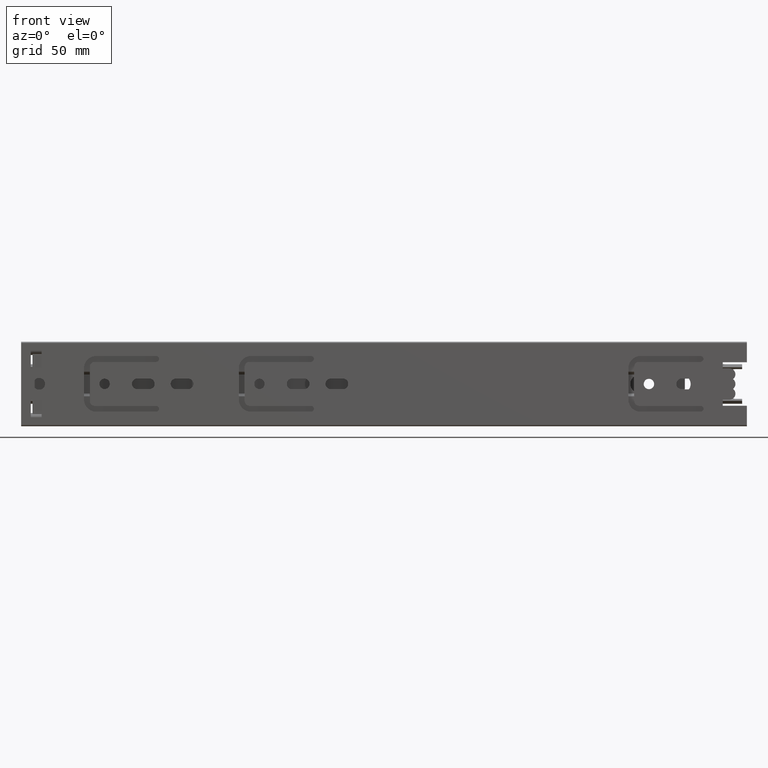
[diagram: clean part render]
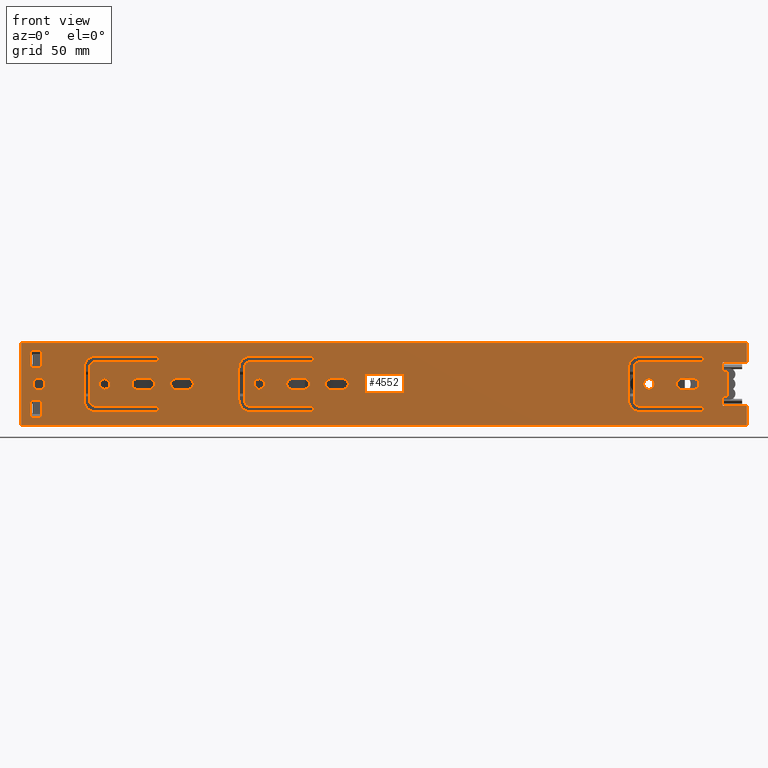
[diagram: same view with one face highlighted and labeled with its STEP entity id]
A machine part, front view. The second image highlights one B-rep face of the part: STEP entity #4552.
In plain terms, the highlighted planar face has unit normal (0, -1, 0).
Its self-contained STEP definition (entity closure, byte-faithful):
#159=FACE_BOUND('',#483,.T.);
#160=FACE_BOUND('',#484,.T.);
#161=FACE_BOUND('',#485,.T.);
#162=FACE_BOUND('',#486,.T.);
#163=FACE_BOUND('',#487,.T.);
#164=FACE_BOUND('',#488,.T.);
#165=FACE_BOUND('',#489,.T.);
#166=FACE_BOUND('',#490,.T.);
#167=FACE_BOUND('',#491,.T.);
#168=FACE_BOUND('',#492,.T.);
#169=FACE_BOUND('',#493,.T.);
#170=FACE_BOUND('',#494,.T.);
#171=FACE_BOUND('',#495,.T.);
#172=FACE_BOUND('',#496,.T.);
#227=FACE_OUTER_BOUND('',#482,.T.);
#482=EDGE_LOOP('',(#3208,#3209,#3210,#3211,#3212,#3213,#3214,#3215,#3216,
#3217,#3218,#3219));
#483=EDGE_LOOP('',(#3220,#3221,#3222,#3223));
#484=EDGE_LOOP('',(#3224,#3225,#3226,#3227));
#485=EDGE_LOOP('',(#3228,#3229,#3230,#3231));
#486=EDGE_LOOP('',(#3232,#3233,#3234,#3235));
#487=EDGE_LOOP('',(#3236));
#488=EDGE_LOOP('',(#3237));
#489=EDGE_LOOP('',(#3238));
#490=EDGE_LOOP('',(#3239));
#491=EDGE_LOOP('',(#3240,#3241,#3242,#3243));
#492=EDGE_LOOP('',(#3244,#3245,#3246,#3247));
#493=EDGE_LOOP('',(#3248,#3249,#3250,#3251));
#494=EDGE_LOOP('',(#3252,#3253,#3254,#3255,#3256,#3257,#3258,#3259,#3260,
#3261,#3262,#3263));
#495=EDGE_LOOP('',(#3264,#3265,#3266,#3267,#3268,#3269,#3270,#3271,#3272,
#3273,#3274,#3275));
#496=EDGE_LOOP('',(#3276,#3277,#3278,#3279,#3280,#3281,#3282,#3283,#3284,
#3285,#3286,#3287));
#769=LINE('',#6630,#1259);
#774=LINE('',#6639,#1264);
#823=LINE('',#6803,#1313);
#826=LINE('',#6808,#1316);
#828=LINE('',#6812,#1318);
#829=LINE('',#6815,#1319);
#832=LINE('',#6820,#1322);
#833=LINE('',#6823,#1323);
#834=LINE('',#6825,#1324);
#835=LINE('',#6827,#1325);
#836=LINE('',#6829,#1326);
#837=LINE('',#6830,#1327);
#838=LINE('',#6835,#1328);
#839=LINE('',#6838,#1329);
#840=LINE('',#6843,#1330);
#841=LINE('',#6846,#1331);
#842=LINE('',#6851,#1332);
#843=LINE('',#6854,#1333);
#844=LINE('',#6857,#1334);
#845=LINE('',#6859,#1335);
#846=LINE('',#6861,#1336);
#847=LINE('',#6862,#1337);
#848=LINE('',#6873,#1338);
#849=LINE('',#6875,#1339);
#850=LINE('',#6877,#1340);
#851=LINE('',#6878,#1341);
#852=LINE('',#6883,#1342);
#853=LINE('',#6886,#1343);
#854=LINE('',#6891,#1344);
#855=LINE('',#6894,#1345);
#856=LINE('',#6899,#1346);
#857=LINE('',#6903,#1347);
#858=LINE('',#6907,#1348);
#859=LINE('',#6911,#1349);
#860=LINE('',#6915,#1350);
#861=LINE('',#6918,#1351);
#862=LINE('',#6923,#1352);
#863=LINE('',#6927,#1353);
#864=LINE('',#6931,#1354);
#865=LINE('',#6935,#1355);
#866=LINE('',#6939,#1356);
#867=LINE('',#6942,#1357);
#868=LINE('',#6947,#1358);
#869=LINE('',#6951,#1359);
#870=LINE('',#6955,#1360);
#871=LINE('',#6959,#1361);
#872=LINE('',#6963,#1362);
#873=LINE('',#6966,#1363);
#1259=VECTOR('',#5275,10.);
#1264=VECTOR('',#5282,2.00000000000003);
#1313=VECTOR('',#5403,2.00000000000003);
#1316=VECTOR('',#5408,4.00000000000002);
#1318=VECTOR('',#5412,10.);
#1319=VECTOR('',#5415,3.99999999999997);
#1322=VECTOR('',#5420,10.);
#1323=VECTOR('',#5423,8.);
#1324=VECTOR('',#5424,300.);
#1325=VECTOR('',#5425,34.);
#1326=VECTOR('',#5426,300.);
#1327=VECTOR('',#5427,8.);
#1328=VECTOR('',#5430,5.);
#1329=VECTOR('',#5433,5.);
#1330=VECTOR('',#5436,5.);
#1331=VECTOR('',#5439,5.);
#1332=VECTOR('',#5442,5.);
#1333=VECTOR('',#5445,5.);
#1334=VECTOR('',#5446,7.);
#1335=VECTOR('',#5447,4.49999999999999);
#1336=VECTOR('',#5448,7.);
#1337=VECTOR('',#5449,4.49999999999999);
#1338=VECTOR('',#5458,7.);
#1339=VECTOR('',#5459,4.49999999999999);
#1340=VECTOR('',#5460,7.);
#1341=VECTOR('',#5461,4.49999999999999);
#1342=VECTOR('',#5464,5.);
#1343=VECTOR('',#5467,5.);
#1344=VECTOR('',#5470,5.);
#1345=VECTOR('',#5473,5.);
#1346=VECTOR('',#5476,25.4);
#1347=VECTOR('',#5479,14.2);
#1348=VECTOR('',#5482,25.4);
#1349=VECTOR('',#5485,24.8);
#1350=VECTOR('',#5488,13.);
#1351=VECTOR('',#5491,24.8);
#1352=VECTOR('',#5494,24.7999999999999);
#1353=VECTOR('',#5497,13.);
#1354=VECTOR('',#5500,24.7999999999999);
#1355=VECTOR('',#5503,25.3999999999999);
#1356=VECTOR('',#5506,14.2);
#1357=VECTOR('',#5509,25.3999999999999);
#1358=VECTOR('',#5512,25.4);
#1359=VECTOR('',#5515,14.2);
#1360=VECTOR('',#5518,25.4);
#1361=VECTOR('',#5521,24.8);
#1362=VECTOR('',#5524,13.);
#1363=VECTOR('',#5527,24.8);
#1776=CIRCLE('',#4844,2.2);
#1777=CIRCLE('',#4845,2.2);
#1778=CIRCLE('',#4846,2.20000000000006);
#1779=CIRCLE('',#4847,2.20000000000006);
#1780=CIRCLE('',#4848,2.2);
#1781=CIRCLE('',#4849,2.2);
#1782=CIRCLE('',#4850,2.15);
#1783=CIRCLE('',#4851,2.15);
#1784=CIRCLE('',#4852,2.15);
#1785=CIRCLE('',#4853,2.45);
#1786=CIRCLE('',#4854,2.2);
#1787=CIRCLE('',#4855,2.2);
#1788=CIRCLE('',#4856,2.20000000000006);
#1789=CIRCLE('',#4857,2.20000000000006);
#1790=CIRCLE('',#4858,1.2);
#1791=CIRCLE('',#4859,1.99999999999999);
#1792=CIRCLE('',#4860,1.99999999999998);
#1793=CIRCLE('',#4861,1.2);
#1794=CIRCLE('',#4862,5.);
#1795=CIRCLE('',#4863,5.);
#1796=CIRCLE('',#4864,1.2);
#1797=CIRCLE('',#4865,5.);
#1798=CIRCLE('',#4866,5.);
#1799=CIRCLE('',#4867,1.2);
#1800=CIRCLE('',#4868,2.);
#1801=CIRCLE('',#4869,2.00000000000001);
#1802=CIRCLE('',#4870,1.2);
#1803=CIRCLE('',#4871,1.99999999999999);
#1804=CIRCLE('',#4872,1.99999999999999);
#1805=CIRCLE('',#4873,1.2);
#1806=CIRCLE('',#4874,5.00000000000002);
#1807=CIRCLE('',#4875,5.00000000000002);
#1934=VERTEX_POINT('',#6627);
#1935=VERTEX_POINT('',#6629);
#1938=VERTEX_POINT('',#6637);
#2017=VERTEX_POINT('',#6802);
#2018=VERTEX_POINT('',#6806);
#2019=VERTEX_POINT('',#6810);
#2020=VERTEX_POINT('',#6814);
#2021=VERTEX_POINT('',#6818);
#2022=VERTEX_POINT('',#6822);
#2023=VERTEX_POINT('',#6824);
#2024=VERTEX_POINT('',#6826);
#2025=VERTEX_POINT('',#6828);
#2026=VERTEX_POINT('',#6831);
#2027=VERTEX_POINT('',#6832);
#2028=VERTEX_POINT('',#6834);
#2029=VERTEX_POINT('',#6836);
#2030=VERTEX_POINT('',#6839);
#2031=VERTEX_POINT('',#6840);
#2032=VERTEX_POINT('',#6842);
#2033=VERTEX_POINT('',#6844);
#2034=VERTEX_POINT('',#6847);
#2035=VERTEX_POINT('',#6848);
#2036=VERTEX_POINT('',#6850);
#2037=VERTEX_POINT('',#6852);
#2038=VERTEX_POINT('',#6855);
#2039=VERTEX_POINT('',#6856);
#2040=VERTEX_POINT('',#6858);
#2041=VERTEX_POINT('',#6860);
#2042=VERTEX_POINT('',#6863);
#2043=VERTEX_POINT('',#6865);
#2044=VERTEX_POINT('',#6867);
#2045=VERTEX_POINT('',#6869);
#2046=VERTEX_POINT('',#6871);
#2047=VERTEX_POINT('',#6872);
#2048=VERTEX_POINT('',#6874);
#2049=VERTEX_POINT('',#6876);
#2050=VERTEX_POINT('',#6879);
#2051=VERTEX_POINT('',#6880);
#2052=VERTEX_POINT('',#6882);
#2053=VERTEX_POINT('',#6884);
#2054=VERTEX_POINT('',#6887);
#2055=VERTEX_POINT('',#6888);
#2056=VERTEX_POINT('',#6890);
#2057=VERTEX_POINT('',#6892);
#2058=VERTEX_POINT('',#6895);
#2059=VERTEX_POINT('',#6896);
#2060=VERTEX_POINT('',#6898);
#2061=VERTEX_POINT('',#6900);
#2062=VERTEX_POINT('',#6902);
#2063=VERTEX_POINT('',#6904);
#2064=VERTEX_POINT('',#6906);
#2065=VERTEX_POINT('',#6908);
#2066=VERTEX_POINT('',#6910);
#2067=VERTEX_POINT('',#6912);
#2068=VERTEX_POINT('',#6914);
#2069=VERTEX_POINT('',#6916);
#2070=VERTEX_POINT('',#6919);
#2071=VERTEX_POINT('',#6920);
#2072=VERTEX_POINT('',#6922);
#2073=VERTEX_POINT('',#6924);
#2074=VERTEX_POINT('',#6926);
#2075=VERTEX_POINT('',#6928);
#2076=VERTEX_POINT('',#6930);
#2077=VERTEX_POINT('',#6932);
#2078=VERTEX_POINT('',#6934);
#2079=VERTEX_POINT('',#6936);
#2080=VERTEX_POINT('',#6938);
#2081=VERTEX_POINT('',#6940);
#2082=VERTEX_POINT('',#6943);
#2083=VERTEX_POINT('',#6944);
#2084=VERTEX_POINT('',#6946);
#2085=VERTEX_POINT('',#6948);
#2086=VERTEX_POINT('',#6950);
#2087=VERTEX_POINT('',#6952);
#2088=VERTEX_POINT('',#6954);
#2089=VERTEX_POINT('',#6956);
#2090=VERTEX_POINT('',#6958);
#2091=VERTEX_POINT('',#6960);
#2092=VERTEX_POINT('',#6962);
#2093=VERTEX_POINT('',#6964);
#2397=EDGE_CURVE('',#1934,#1935,#769,.T.);
#2402=EDGE_CURVE('',#1938,#1934,#774,.T.);
#2483=EDGE_CURVE('',#1935,#2017,#823,.T.);
#2486=EDGE_CURVE('',#1938,#2018,#826,.T.);
#2488=EDGE_CURVE('',#2018,#2019,#828,.T.);
#2489=EDGE_CURVE('',#2020,#2017,#829,.T.);
#2492=EDGE_CURVE('',#2021,#2020,#832,.T.);
#2493=EDGE_CURVE('',#2022,#2019,#833,.T.);
#2494=EDGE_CURVE('',#2023,#2022,#834,.T.);
#2495=EDGE_CURVE('',#2024,#2023,#835,.T.);
#2496=EDGE_CURVE('',#2024,#2025,#836,.T.);
#2497=EDGE_CURVE('',#2021,#2025,#837,.T.);
#2498=EDGE_CURVE('',#2026,#2027,#1776,.T.);
#2499=EDGE_CURVE('',#2027,#2028,#838,.T.);
#2500=EDGE_CURVE('',#2028,#2029,#1777,.T.);
#2501=EDGE_CURVE('',#2029,#2026,#839,.T.);
#2502=EDGE_CURVE('',#2030,#2031,#1778,.T.);
#2503=EDGE_CURVE('',#2031,#2032,#840,.T.);
#2504=EDGE_CURVE('',#2032,#2033,#1779,.T.);
#2505=EDGE_CURVE('',#2033,#2030,#841,.T.);
#2506=EDGE_CURVE('',#2034,#2035,#1780,.T.);
#2507=EDGE_CURVE('',#2035,#2036,#842,.T.);
#2508=EDGE_CURVE('',#2036,#2037,#1781,.T.);
#2509=EDGE_CURVE('',#2037,#2034,#843,.T.);
#2510=EDGE_CURVE('',#2038,#2039,#844,.T.);
#2511=EDGE_CURVE('',#2039,#2040,#845,.T.);
#2512=EDGE_CURVE('',#2040,#2041,#846,.T.);
#2513=EDGE_CURVE('',#2041,#2038,#847,.T.);
#2514=EDGE_CURVE('',#2042,#2042,#1782,.T.);
#2515=EDGE_CURVE('',#2043,#2043,#1783,.T.);
#2516=EDGE_CURVE('',#2044,#2044,#1784,.T.);
#2517=EDGE_CURVE('',#2045,#2045,#1785,.T.);
#2518=EDGE_CURVE('',#2046,#2047,#848,.T.);
#2519=EDGE_CURVE('',#2047,#2048,#849,.T.);
#2520=EDGE_CURVE('',#2048,#2049,#850,.T.);
#2521=EDGE_CURVE('',#2049,#2046,#851,.T.);
#2522=EDGE_CURVE('',#2050,#2051,#1786,.T.);
#2523=EDGE_CURVE('',#2051,#2052,#852,.T.);
#2524=EDGE_CURVE('',#2052,#2053,#1787,.T.);
#2525=EDGE_CURVE('',#2053,#2050,#853,.T.);
#2526=EDGE_CURVE('',#2054,#2055,#1788,.T.);
#2527=EDGE_CURVE('',#2055,#2056,#854,.T.);
#2528=EDGE_CURVE('',#2056,#2057,#1789,.T.);
#2529=EDGE_CURVE('',#2057,#2054,#855,.T.);
#2530=EDGE_CURVE('',#2058,#2059,#1790,.T.);
#2531=EDGE_CURVE('',#2059,#2060,#856,.T.);
#2532=EDGE_CURVE('',#2060,#2061,#1791,.T.);
#2533=EDGE_CURVE('',#2061,#2062,#857,.T.);
#2534=EDGE_CURVE('',#2062,#2063,#1792,.T.);
#2535=EDGE_CURVE('',#2063,#2064,#858,.T.);
#2536=EDGE_CURVE('',#2064,#2065,#1793,.T.);
#2537=EDGE_CURVE('',#2065,#2066,#859,.T.);
#2538=EDGE_CURVE('',#2066,#2067,#1794,.T.);
#2539=EDGE_CURVE('',#2067,#2068,#860,.T.);
#2540=EDGE_CURVE('',#2068,#2069,#1795,.T.);
#2541=EDGE_CURVE('',#2069,#2058,#861,.T.);
#2542=EDGE_CURVE('',#2070,#2071,#1796,.T.);
#2543=EDGE_CURVE('',#2071,#2072,#862,.T.);
#2544=EDGE_CURVE('',#2072,#2073,#1797,.T.);
#2545=EDGE_CURVE('',#2073,#2074,#863,.T.);
#2546=EDGE_CURVE('',#2074,#2075,#1798,.T.);
#2547=EDGE_CURVE('',#2075,#2076,#864,.T.);
#2548=EDGE_CURVE('',#2076,#2077,#1799,.T.);
#2549=EDGE_CURVE('',#2077,#2078,#865,.T.);
#2550=EDGE_CURVE('',#2078,#2079,#1800,.T.);
#2551=EDGE_CURVE('',#2079,#2080,#866,.T.);
#2552=EDGE_CURVE('',#2080,#2081,#1801,.T.);
#2553=EDGE_CURVE('',#2081,#2070,#867,.T.);
#2554=EDGE_CURVE('',#2082,#2083,#1802,.T.);
#2555=EDGE_CURVE('',#2083,#2084,#868,.T.);
#2556=EDGE_CURVE('',#2084,#2085,#1803,.T.);
#2557=EDGE_CURVE('',#2085,#2086,#869,.T.);
#2558=EDGE_CURVE('',#2086,#2087,#1804,.T.);
#2559=EDGE_CURVE('',#2087,#2088,#870,.T.);
#2560=EDGE_CURVE('',#2088,#2089,#1805,.T.);
#2561=EDGE_CURVE('',#2089,#2090,#871,.T.);
#2562=EDGE_CURVE('',#2090,#2091,#1806,.T.);
#2563=EDGE_CURVE('',#2091,#2092,#872,.T.);
#2564=EDGE_CURVE('',#2092,#2093,#1807,.T.);
#2565=EDGE_CURVE('',#2093,#2082,#873,.T.);
#3208=ORIENTED_EDGE('',*,*,#2402,.F.);
#3209=ORIENTED_EDGE('',*,*,#2486,.T.);
#3210=ORIENTED_EDGE('',*,*,#2488,.T.);
#3211=ORIENTED_EDGE('',*,*,#2493,.F.);
#3212=ORIENTED_EDGE('',*,*,#2494,.F.);
#3213=ORIENTED_EDGE('',*,*,#2495,.F.);
#3214=ORIENTED_EDGE('',*,*,#2496,.T.);
#3215=ORIENTED_EDGE('',*,*,#2497,.F.);
#3216=ORIENTED_EDGE('',*,*,#2492,.T.);
#3217=ORIENTED_EDGE('',*,*,#2489,.T.);
#3218=ORIENTED_EDGE('',*,*,#2483,.F.);
#3219=ORIENTED_EDGE('',*,*,#2397,.F.);
#3220=ORIENTED_EDGE('',*,*,#2498,.T.);
#3221=ORIENTED_EDGE('',*,*,#2499,.T.);
#3222=ORIENTED_EDGE('',*,*,#2500,.T.);
#3223=ORIENTED_EDGE('',*,*,#2501,.T.);
#3224=ORIENTED_EDGE('',*,*,#2502,.T.);
#3225=ORIENTED_EDGE('',*,*,#2503,.T.);
#3226=ORIENTED_EDGE('',*,*,#2504,.T.);
#3227=ORIENTED_EDGE('',*,*,#2505,.T.);
#3228=ORIENTED_EDGE('',*,*,#2506,.T.);
#3229=ORIENTED_EDGE('',*,*,#2507,.T.);
#3230=ORIENTED_EDGE('',*,*,#2508,.T.);
#3231=ORIENTED_EDGE('',*,*,#2509,.T.);
#3232=ORIENTED_EDGE('',*,*,#2510,.T.);
#3233=ORIENTED_EDGE('',*,*,#2511,.T.);
#3234=ORIENTED_EDGE('',*,*,#2512,.T.);
#3235=ORIENTED_EDGE('',*,*,#2513,.T.);
#3236=ORIENTED_EDGE('',*,*,#2514,.T.);
#3237=ORIENTED_EDGE('',*,*,#2515,.T.);
#3238=ORIENTED_EDGE('',*,*,#2516,.T.);
#3239=ORIENTED_EDGE('',*,*,#2517,.T.);
#3240=ORIENTED_EDGE('',*,*,#2518,.T.);
#3241=ORIENTED_EDGE('',*,*,#2519,.T.);
#3242=ORIENTED_EDGE('',*,*,#2520,.T.);
#3243=ORIENTED_EDGE('',*,*,#2521,.T.);
#3244=ORIENTED_EDGE('',*,*,#2522,.T.);
#3245=ORIENTED_EDGE('',*,*,#2523,.T.);
#3246=ORIENTED_EDGE('',*,*,#2524,.T.);
#3247=ORIENTED_EDGE('',*,*,#2525,.T.);
#3248=ORIENTED_EDGE('',*,*,#2526,.T.);
#3249=ORIENTED_EDGE('',*,*,#2527,.T.);
#3250=ORIENTED_EDGE('',*,*,#2528,.T.);
#3251=ORIENTED_EDGE('',*,*,#2529,.T.);
#3252=ORIENTED_EDGE('',*,*,#2530,.T.);
#3253=ORIENTED_EDGE('',*,*,#2531,.T.);
#3254=ORIENTED_EDGE('',*,*,#2532,.T.);
#3255=ORIENTED_EDGE('',*,*,#2533,.T.);
#3256=ORIENTED_EDGE('',*,*,#2534,.T.);
#3257=ORIENTED_EDGE('',*,*,#2535,.T.);
#3258=ORIENTED_EDGE('',*,*,#2536,.T.);
#3259=ORIENTED_EDGE('',*,*,#2537,.T.);
#3260=ORIENTED_EDGE('',*,*,#2538,.T.);
#3261=ORIENTED_EDGE('',*,*,#2539,.T.);
#3262=ORIENTED_EDGE('',*,*,#2540,.T.);
#3263=ORIENTED_EDGE('',*,*,#2541,.T.);
#3264=ORIENTED_EDGE('',*,*,#2542,.T.);
#3265=ORIENTED_EDGE('',*,*,#2543,.T.);
#3266=ORIENTED_EDGE('',*,*,#2544,.T.);
#3267=ORIENTED_EDGE('',*,*,#2545,.T.);
#3268=ORIENTED_EDGE('',*,*,#2546,.T.);
#3269=ORIENTED_EDGE('',*,*,#2547,.T.);
#3270=ORIENTED_EDGE('',*,*,#2548,.T.);
#3271=ORIENTED_EDGE('',*,*,#2549,.T.);
#3272=ORIENTED_EDGE('',*,*,#2550,.T.);
#3273=ORIENTED_EDGE('',*,*,#2551,.T.);
#3274=ORIENTED_EDGE('',*,*,#2552,.T.);
#3275=ORIENTED_EDGE('',*,*,#2553,.T.);
#3276=ORIENTED_EDGE('',*,*,#2554,.T.);
#3277=ORIENTED_EDGE('',*,*,#2555,.T.);
#3278=ORIENTED_EDGE('',*,*,#2556,.T.);
#3279=ORIENTED_EDGE('',*,*,#2557,.T.);
#3280=ORIENTED_EDGE('',*,*,#2558,.T.);
#3281=ORIENTED_EDGE('',*,*,#2559,.T.);
#3282=ORIENTED_EDGE('',*,*,#2560,.T.);
#3283=ORIENTED_EDGE('',*,*,#2561,.T.);
#3284=ORIENTED_EDGE('',*,*,#2562,.T.);
#3285=ORIENTED_EDGE('',*,*,#2563,.T.);
#3286=ORIENTED_EDGE('',*,*,#2564,.T.);
#3287=ORIENTED_EDGE('',*,*,#2565,.T.);
#4397=PLANE('',#4843);
#4552=ADVANCED_FACE('',(#227,#159,#160,#161,#162,#163,#164,#165,#166,#167,
#168,#169,#170,#171,#172),#4397,.T.);
#4843=AXIS2_PLACEMENT_3D('',#6821,#5421,#5422);
#4844=AXIS2_PLACEMENT_3D('',#6833,#5428,#5429);
#4845=AXIS2_PLACEMENT_3D('',#6837,#5431,#5432);
#4846=AXIS2_PLACEMENT_3D('',#6841,#5434,#5435);
#4847=AXIS2_PLACEMENT_3D('',#6845,#5437,#5438);
#4848=AXIS2_PLACEMENT_3D('',#6849,#5440,#5441);
#4849=AXIS2_PLACEMENT_3D('',#6853,#5443,#5444);
#4850=AXIS2_PLACEMENT_3D('',#6864,#5450,#5451);
#4851=AXIS2_PLACEMENT_3D('',#6866,#5452,#5453);
#4852=AXIS2_PLACEMENT_3D('',#6868,#5454,#5455);
#4853=AXIS2_PLACEMENT_3D('',#6870,#5456,#5457);
#4854=AXIS2_PLACEMENT_3D('',#6881,#5462,#5463);
#4855=AXIS2_PLACEMENT_3D('',#6885,#5465,#5466);
#4856=AXIS2_PLACEMENT_3D('',#6889,#5468,#5469);
#4857=AXIS2_PLACEMENT_3D('',#6893,#5471,#5472);
#4858=AXIS2_PLACEMENT_3D('',#6897,#5474,#5475);
#4859=AXIS2_PLACEMENT_3D('',#6901,#5477,#5478);
#4860=AXIS2_PLACEMENT_3D('',#6905,#5480,#5481);
#4861=AXIS2_PLACEMENT_3D('',#6909,#5483,#5484);
#4862=AXIS2_PLACEMENT_3D('',#6913,#5486,#5487);
#4863=AXIS2_PLACEMENT_3D('',#6917,#5489,#5490);
#4864=AXIS2_PLACEMENT_3D('',#6921,#5492,#5493);
#4865=AXIS2_PLACEMENT_3D('',#6925,#5495,#5496);
#4866=AXIS2_PLACEMENT_3D('',#6929,#5498,#5499);
#4867=AXIS2_PLACEMENT_3D('',#6933,#5501,#5502);
#4868=AXIS2_PLACEMENT_3D('',#6937,#5504,#5505);
#4869=AXIS2_PLACEMENT_3D('',#6941,#5507,#5508);
#4870=AXIS2_PLACEMENT_3D('',#6945,#5510,#5511);
#4871=AXIS2_PLACEMENT_3D('',#6949,#5513,#5514);
#4872=AXIS2_PLACEMENT_3D('',#6953,#5516,#5517);
#4873=AXIS2_PLACEMENT_3D('',#6957,#5519,#5520);
#4874=AXIS2_PLACEMENT_3D('',#6961,#5522,#5523);
#4875=AXIS2_PLACEMENT_3D('',#6965,#5525,#5526);
#5275=DIRECTION('',(0.,-3.06161699786838E-16,-1.));
#5282=DIRECTION('',(1.,-6.79815536723436E-31,-2.22044604925028E-15));
#5403=DIRECTION('',(-1.,0.,0.));
#5408=DIRECTION('',(0.,3.06161699786838E-16,1.));
#5412=DIRECTION('',(1.,0.,0.));
#5415=DIRECTION('',(0.,3.06161699786838E-16,1.));
#5420=DIRECTION('',(-1.,-4.71385096176607E-32,-1.53966056663784E-16));
#5421=DIRECTION('center_axis',(0.,-1.,3.06161699786838E-16));
#5422=DIRECTION('ref_axis',(0.,-3.06161699786838E-16,-1.));
#5423=DIRECTION('',(0.,-3.06161699786838E-16,-1.));
#5424=DIRECTION('',(1.,0.,0.));
#5425=DIRECTION('',(0.,-3.06161699786838E-16,1.));
#5426=DIRECTION('',(1.,0.,0.));
#5427=DIRECTION('',(0.,-3.06161699786838E-16,-1.));
#5428=DIRECTION('center_axis',(0.,1.,-3.06161699786838E-16));
#5429=DIRECTION('ref_axis',(0.,-2.77555756156289E-16,-1.));
#5430=DIRECTION('',(1.,-1.35963107344689E-31,-4.44089209850063E-16));
#5431=DIRECTION('center_axis',(0.,1.,-3.06161699786838E-16));
#5432=DIRECTION('ref_axis',(0.,2.77555756156289E-16,1.));
#5433=DIRECTION('',(-1.,-1.35963107344689E-31,-4.44089209850063E-16));
#5434=DIRECTION('center_axis',(0.,1.,-3.06161699786838E-16));
#5435=DIRECTION('ref_axis',(0.,-2.77555756156289E-16,-1.));
#5436=DIRECTION('',(1.,0.,0.));
#5437=DIRECTION('center_axis',(0.,1.,-3.06161699786838E-16));
#5438=DIRECTION('ref_axis',(0.,2.77555756156289E-16,1.));
#5439=DIRECTION('',(-1.,0.,0.));
#5440=DIRECTION('center_axis',(0.,1.,-3.06161699786838E-16));
#5441=DIRECTION('ref_axis',(0.,-2.77555756156289E-16,-1.));
#5442=DIRECTION('',(1.,0.,0.));
#5443=DIRECTION('center_axis',(0.,1.,-3.06161699786838E-16));
#5444=DIRECTION('ref_axis',(0.,2.77555756156289E-16,1.));
#5445=DIRECTION('',(-1.,2.71926214689378E-31,8.88178419700125E-16));
#5446=DIRECTION('',(-4.75809867696496E-16,3.06161699786838E-16,1.));
#5447=DIRECTION('',(1.,0.,0.));
#5448=DIRECTION('',(3.1720657846433E-16,-3.06161699786838E-16,-1.));
#5449=DIRECTION('',(-1.,0.,0.));
#5450=DIRECTION('center_axis',(0.,1.,-3.06161699786838E-16));
#5451=DIRECTION('ref_axis',(-1.,0.,0.));
#5452=DIRECTION('center_axis',(0.,1.,-3.06161699786838E-16));
#5453=DIRECTION('ref_axis',(-1.,0.,0.));
#5454=DIRECTION('center_axis',(0.,1.,-3.06161699786838E-16));
#5455=DIRECTION('ref_axis',(-1.,0.,0.));
#5456=DIRECTION('center_axis',(0.,1.,-3.06161699786838E-16));
#5457=DIRECTION('ref_axis',(-1.,0.,0.));
#5458=DIRECTION('',(-1.58603289232165E-16,3.06161699786838E-16,1.));
#5459=DIRECTION('',(1.,0.,0.));
#5460=DIRECTION('',(0.,-3.06161699786838E-16,-1.));
#5461=DIRECTION('',(-1.,0.,0.));
#5462=DIRECTION('center_axis',(0.,1.,-3.06161699786838E-16));
#5463=DIRECTION('ref_axis',(0.,-2.77555756156289E-16,-1.));
#5464=DIRECTION('',(1.,0.,0.));
#5465=DIRECTION('center_axis',(0.,1.,-3.06161699786838E-16));
#5466=DIRECTION('ref_axis',(0.,2.77555756156289E-16,1.));
#5467=DIRECTION('',(-1.,1.35963107344689E-31,4.44089209850063E-16));
#5468=DIRECTION('center_axis',(0.,1.,-3.06161699786838E-16));
#5469=DIRECTION('ref_axis',(0.,-2.77555756156289E-16,-1.));
#5470=DIRECTION('',(1.,1.35963107344689E-31,4.44089209850063E-16));
#5471=DIRECTION('center_axis',(0.,1.,-3.06161699786838E-16));
#5472=DIRECTION('ref_axis',(0.,2.77555756156289E-16,1.));
#5473=DIRECTION('',(-1.,0.,0.));
#5474=DIRECTION('center_axis',(0.,1.,-3.06161699786838E-16));
#5475=DIRECTION('ref_axis',(0.,3.70074341541719E-16,1.));
#5476=DIRECTION('',(-1.,3.21172694515013E-31,1.04902962956708E-15));
#5477=DIRECTION('center_axis',(0.,-1.,3.06161699786838E-16));
#5478=DIRECTION('ref_axis',(0.,3.70074341541719E-16,1.));
#5479=DIRECTION('',(0.,-3.06161699786838E-16,-1.));
#5480=DIRECTION('center_axis',(0.,-1.,3.06161699786838E-16));
#5481=DIRECTION('ref_axis',(-1.,3.4923529658222E-30,9.43689570931387E-15));
#5482=DIRECTION('',(1.,-1.07057564838338E-31,-3.49676543189025E-16));
#5483=DIRECTION('center_axis',(0.,1.,-3.06161699786838E-16));
#5484=DIRECTION('ref_axis',(0.,3.70074341541719E-16,1.));
#5485=DIRECTION('',(-1.,1.23353625615141E-31,4.02903517001065E-16));
#5486=DIRECTION('center_axis',(0.,1.,-3.06161699786838E-16));
#5487=DIRECTION('ref_axis',(1.,0.,0.));
#5488=DIRECTION('',(0.,3.06161699786838E-16,1.));
#5489=DIRECTION('center_axis',(0.,1.,-3.06161699786838E-16));
#5490=DIRECTION('ref_axis',(0.,-3.70074341541719E-16,-1.));
#5491=DIRECTION('',(1.,1.09647667213459E-31,3.58136459556502E-16));
#5492=DIRECTION('center_axis',(0.,1.,-3.06161699786838E-16));
#5493=DIRECTION('ref_axis',(0.,0.,1.));
#5494=DIRECTION('',(-1.,5.48238336067296E-32,1.79068229778252E-16));
#5495=DIRECTION('center_axis',(0.,1.,-3.06161699786838E-16));
#5496=DIRECTION('ref_axis',(1.,0.,0.));
#5497=DIRECTION('',(0.,3.06161699786838E-16,1.));
#5498=DIRECTION('center_axis',(0.,1.,-3.06161699786838E-16));
#5499=DIRECTION('ref_axis',(0.,0.,-1.));
#5500=DIRECTION('',(1.,5.48238336067296E-32,1.79068229778252E-16));
#5501=DIRECTION('center_axis',(0.,1.,-3.06161699786838E-16));
#5502=DIRECTION('ref_axis',(0.,0.,1.));
#5503=DIRECTION('',(-1.,5.35287824191691E-32,1.74838271594513E-16));
#5504=DIRECTION('center_axis',(0.,-1.,3.06161699786838E-16));
#5505=DIRECTION('ref_axis',(2.22044604925032E-15,0.,1.));
#5506=DIRECTION('',(-3.127388801761E-16,-3.06161699786838E-16,-1.));
#5507=DIRECTION('center_axis',(0.,-1.,3.06161699786838E-16));
#5508=DIRECTION('ref_axis',(-1.,0.,-4.99600361081318E-15));
#5509=DIRECTION('',(1.,-2.67643912095845E-32,-8.74191357972567E-17));
#5510=DIRECTION('center_axis',(0.,1.,-3.06161699786838E-16));
#5511=DIRECTION('ref_axis',(0.,3.70074341541719E-16,1.));
#5512=DIRECTION('',(-1.,2.14115129676676E-31,6.99353086378052E-16));
#5513=DIRECTION('center_axis',(0.,-1.,3.06161699786838E-16));
#5514=DIRECTION('ref_axis',(0.,3.70074341541719E-16,1.));
#5515=DIRECTION('',(0.,-3.06161699786838E-16,-1.));
#5516=DIRECTION('center_axis',(0.,-1.,3.06161699786838E-16));
#5517=DIRECTION('ref_axis',(-1.,2.25975780141436E-30,6.10622663543838E-15));
#5518=DIRECTION('',(1.,-5.35287824191689E-32,-1.74838271594513E-16));
#5519=DIRECTION('center_axis',(0.,1.,-3.06161699786838E-16));
#5520=DIRECTION('ref_axis',(0.,3.70074341541719E-16,1.));
#5521=DIRECTION('',(-1.,1.37059584016824E-31,4.47670574445628E-16));
#5522=DIRECTION('center_axis',(0.,1.,-3.06161699786838E-16));
#5523=DIRECTION('ref_axis',(1.,0.,0.));
#5524=DIRECTION('',(0.,3.06161699786838E-16,1.));
#5525=DIRECTION('center_axis',(0.,1.,-3.06161699786838E-16));
#5526=DIRECTION('ref_axis',(0.,-3.70074341541719E-16,-1.));
#5527=DIRECTION('',(1.,1.64471500820189E-31,5.37204689334754E-16));
#6627=CARTESIAN_POINT('',(142.,1.53080849893418E-15,4.99999999999997));
#6629=CARTESIAN_POINT('',(142.,-1.5308084989342E-15,-5.00000000000003));
#6630=CARTESIAN_POINT('',(142.,1.53080849893418E-15,4.99999999999997));
#6637=CARTESIAN_POINT('',(140.,1.53080849893419E-15,4.99999999999998));
#6639=CARTESIAN_POINT('',(140.,1.53080849893419E-15,4.99999999999998));
#6802=CARTESIAN_POINT('',(140.,-1.5308084989342E-15,-5.00000000000003));
#6803=CARTESIAN_POINT('',(142.,-1.5308084989342E-15,-5.00000000000003));
#6806=CARTESIAN_POINT('',(140.,2.75545529808154E-15,9.));
#6808=CARTESIAN_POINT('',(140.,1.22464679914735E-15,4.));
#6810=CARTESIAN_POINT('',(150.,2.75545529808154E-15,9.));
#6812=CARTESIAN_POINT('',(70.,2.75545529808154E-15,9.));
#6814=CARTESIAN_POINT('',(140.,-2.75545529808154E-15,-9.));
#6815=CARTESIAN_POINT('',(140.,1.22464679914735E-15,4.));
#6818=CARTESIAN_POINT('',(150.,-2.75545529808154E-15,-9.));
#6820=CARTESIAN_POINT('',(77.2108297678205,-2.75545529808155E-15,-9.00000000000001));
#6821=CARTESIAN_POINT('Origin',(0.,5.20474889637625E-15,17.));
#6822=CARTESIAN_POINT('',(150.,5.20474889637625E-15,17.));
#6823=CARTESIAN_POINT('',(150.,5.20474889637625E-15,17.));
#6824=CARTESIAN_POINT('',(-150.,5.20474889637625E-15,17.));
#6825=CARTESIAN_POINT('',(0.,5.20474889637625E-15,17.));
#6826=CARTESIAN_POINT('',(-150.,5.20474889637625E-15,-17.));
#6827=CARTESIAN_POINT('',(-150.,0.,0.));
#6828=CARTESIAN_POINT('',(150.,5.20474889637625E-15,-17.));
#6829=CARTESIAN_POINT('',(0.,5.20474889637625E-15,-17.));
#6830=CARTESIAN_POINT('',(150.,5.20474889637625E-15,17.));
#6831=CARTESIAN_POINT('',(123.,-6.73555739531045E-16,-2.2));
#6832=CARTESIAN_POINT('',(123.,6.73555739531045E-16,2.2));
#6833=CARTESIAN_POINT('Origin',(123.,4.86301041719335E-16,-1.34975653354001E-31));
#6834=CARTESIAN_POINT('',(128.,6.73555739531044E-16,2.2));
#6835=CARTESIAN_POINT('',(61.5,6.73555739531054E-16,2.20000000000003));
#6836=CARTESIAN_POINT('',(128.,-6.73555739531045E-16,-2.2));
#6837=CARTESIAN_POINT('Origin',(128.,4.86301041719335E-16,-1.34975653354001E-31));
#6838=CARTESIAN_POINT('',(64.,-6.73555739531052E-16,-2.20000000000003));
#6839=CARTESIAN_POINT('',(-38.,-6.73555739531045E-16,-2.2));
#6840=CARTESIAN_POINT('',(-38.,6.73555739531045E-16,2.2));
#6841=CARTESIAN_POINT('Origin',(-38.,4.86301041719335E-16,-1.34975653354001E-31));
#6842=CARTESIAN_POINT('',(-33.,6.73555739531045E-16,2.2));
#6843=CARTESIAN_POINT('',(-19.,6.73555739531045E-16,2.2));
#6844=CARTESIAN_POINT('',(-33.,-6.73555739531045E-16,-2.2));
#6845=CARTESIAN_POINT('Origin',(-33.,4.86301041719335E-16,-1.34975653354001E-31));
#6846=CARTESIAN_POINT('',(-16.5,-6.73555739531045E-16,-2.2));
#6847=CARTESIAN_POINT('',(-102.,-6.73555739531042E-16,-2.19999999999999));
#6848=CARTESIAN_POINT('',(-102.,6.73555739531046E-16,2.20000000000001));
#6849=CARTESIAN_POINT('Origin',(-102.,4.86301041719338E-16,8.88178419700125E-15));
#6850=CARTESIAN_POINT('',(-97.,6.73555739531046E-16,2.20000000000001));
#6851=CARTESIAN_POINT('',(-51.,6.73555739531047E-16,2.20000000000001));
#6852=CARTESIAN_POINT('',(-97.,-6.73555739531043E-16,-2.19999999999999));
#6853=CARTESIAN_POINT('Origin',(-97.,4.86301041719338E-16,8.88178419700125E-15));
#6854=CARTESIAN_POINT('',(-48.5,-6.73555739531055E-16,-2.20000000000004));
#6855=CARTESIAN_POINT('',(-146.,2.06659147356116E-15,6.75));
#6856=CARTESIAN_POINT('',(-146.,4.20972337206903E-15,13.75));
#6857=CARTESIAN_POINT('',(-146.,3.63567018496869E-15,11.875));
#6858=CARTESIAN_POINT('',(-141.5,4.20972337206903E-15,13.75));
#6859=CARTESIAN_POINT('',(-73.,4.20972337206903E-15,13.75));
#6860=CARTESIAN_POINT('',(-141.5,2.06659147356116E-15,6.75));
#6861=CARTESIAN_POINT('',(-141.5,4.70723613422263E-15,15.375));
#6862=CARTESIAN_POINT('',(-70.75,2.06659147356116E-15,6.75));
#6863=CARTESIAN_POINT('',(111.65,8.06120883180748E-32,2.63299061816681E-16));
#6864=CARTESIAN_POINT('Origin',(109.5,0.,0.));
#6865=CARTESIAN_POINT('',(-113.35,8.06120883180748E-32,2.63299061816681E-16));
#6866=CARTESIAN_POINT('Origin',(-115.5,0.,0.));
#6867=CARTESIAN_POINT('',(-49.35,8.06120883180748E-32,2.63299061816681E-16));
#6868=CARTESIAN_POINT('Origin',(-51.5,0.,0.));
#6869=CARTESIAN_POINT('',(-140.1,9.18602866880388E-32,3.00038465791102E-16));
#6870=CARTESIAN_POINT('Origin',(-142.55,0.,0.));
#6871=CARTESIAN_POINT('',(-146.,-4.20972337206903E-15,-13.75));
#6872=CARTESIAN_POINT('',(-146.,-2.06659147356116E-15,-6.75));
#6873=CARTESIAN_POINT('',(-146.,4.9751276215361E-16,1.62499999999999));
#6874=CARTESIAN_POINT('',(-141.5,-2.06659147356116E-15,-6.75));
#6875=CARTESIAN_POINT('',(-73.,-2.06659147356116E-15,-6.75));
#6876=CARTESIAN_POINT('',(-141.5,-4.20972337206903E-15,-13.75));
#6877=CARTESIAN_POINT('',(-141.5,1.56907871140755E-15,5.125));
#6878=CARTESIAN_POINT('',(-70.75,-4.20972337206903E-15,-13.75));
#6879=CARTESIAN_POINT('',(-86.,-6.73555739531045E-16,-2.2));
#6880=CARTESIAN_POINT('',(-86.,6.73555739531043E-16,2.2));
#6881=CARTESIAN_POINT('Origin',(-86.,4.86301041719335E-16,-1.34975653354001E-31));
#6882=CARTESIAN_POINT('',(-81.,6.73555739531043E-16,2.2));
#6883=CARTESIAN_POINT('',(-43.,6.73555739531043E-16,2.2));
#6884=CARTESIAN_POINT('',(-81.,-6.73555739531045E-16,-2.2));
#6885=CARTESIAN_POINT('Origin',(-81.,4.86301041719335E-16,-1.34975653354001E-31));
#6886=CARTESIAN_POINT('',(-40.5,-6.73555739531049E-16,-2.20000000000002));
#6887=CARTESIAN_POINT('',(-22.,-6.73555739531045E-16,-2.2));
#6888=CARTESIAN_POINT('',(-22.,6.73555739531045E-16,2.2));
#6889=CARTESIAN_POINT('Origin',(-22.,4.86301041719335E-16,-1.34975653354001E-31));
#6890=CARTESIAN_POINT('',(-17.,6.73555739531045E-16,2.2));
#6891=CARTESIAN_POINT('',(-11.,6.73555739531046E-16,2.20000000000001));
#6892=CARTESIAN_POINT('',(-17.,-6.73555739531045E-16,-2.2));
#6893=CARTESIAN_POINT('Origin',(-17.,4.86301041719335E-16,-1.34975653354001E-31));
#6894=CARTESIAN_POINT('',(-8.5,-6.73555739531045E-16,-2.2));
#6895=CARTESIAN_POINT('',(130.8,3.52085954754864E-15,11.5));
#6896=CARTESIAN_POINT('',(130.8,2.78607146806023E-15,9.1));
#6897=CARTESIAN_POINT('Origin',(130.8,2.72525080804673E-15,10.3));
#6898=CARTESIAN_POINT('',(105.4,2.78607146806024E-15,9.10000000000003));
#6899=CARTESIAN_POINT('',(65.4,2.78607146806025E-15,9.10000000000007));
#6900=CARTESIAN_POINT('',(103.4,2.17374806848655E-15,7.10000000000001));
#6901=CARTESIAN_POINT('Origin',(105.4,1.54101291511325E-15,7.10000000000004));
#6902=CARTESIAN_POINT('',(103.4,-2.17374806848655E-15,-7.09999999999999));
#6903=CARTESIAN_POINT('',(103.4,3.6892484824314E-15,12.05));
#6904=CARTESIAN_POINT('',(105.4,-2.78607146806023E-15,-9.09999999999999));
#6905=CARTESIAN_POINT('Origin',(105.4,-3.71404273477918E-15,-7.10000000000001));
#6906=CARTESIAN_POINT('',(130.8,-2.78607146806023E-15,-9.1));
#6907=CARTESIAN_POINT('',(52.7,-2.78607146806022E-15,-9.09999999999997));
#6908=CARTESIAN_POINT('',(130.8,-3.52085954754864E-15,-11.5));
#6909=CARTESIAN_POINT('Origin',(130.8,-4.89828062771268E-15,-10.3));
#6910=CARTESIAN_POINT('',(106.,-3.52085954754864E-15,-11.5));
#6911=CARTESIAN_POINT('',(65.4,-3.52085954754863E-15,-11.5));
#6912=CARTESIAN_POINT('',(101.,-1.99005104861445E-15,-6.5));
#6913=CARTESIAN_POINT('Origin',(106.,-3.49199812985414E-15,-6.5));
#6914=CARTESIAN_POINT('',(101.,1.99005104861445E-15,6.49999999999999));
#6915=CARTESIAN_POINT('',(101.,1.6073489238809E-15,5.25));
#6916=CARTESIAN_POINT('',(106.,3.52085954754864E-15,11.5));
#6917=CARTESIAN_POINT('Origin',(106.,1.3189683101882E-15,6.49999999999999));
#6918=CARTESIAN_POINT('',(53.,3.52085954754863E-15,11.5));
#6919=CARTESIAN_POINT('',(-94.2000000000001,-2.78607146806023E-15,-9.09999999999999));
#6920=CARTESIAN_POINT('',(-94.2000000000001,-3.52085954754864E-15,-11.5));
#6921=CARTESIAN_POINT('Origin',(-94.2000000000001,5.20474889637625E-15,
-10.3));
#6922=CARTESIAN_POINT('',(-119.,-3.52085954754864E-15,-11.5));
#6923=CARTESIAN_POINT('',(-47.1,-3.52085954754864E-15,-11.5));
#6924=CARTESIAN_POINT('',(-124.,-1.99005104861445E-15,-6.5));
#6925=CARTESIAN_POINT('Origin',(-119.,5.20474889637625E-15,-6.5));
#6926=CARTESIAN_POINT('',(-124.,1.99005104861445E-15,6.5));
#6927=CARTESIAN_POINT('',(-124.,1.6073489238809E-15,5.25));
#6928=CARTESIAN_POINT('',(-119.,3.52085954754863E-15,11.5));
#6929=CARTESIAN_POINT('Origin',(-119.,5.20474889637625E-15,6.5));
#6930=CARTESIAN_POINT('',(-94.2000000000001,3.52085954754864E-15,11.5));
#6931=CARTESIAN_POINT('',(-59.5,3.52085954754864E-15,11.5));
#6932=CARTESIAN_POINT('',(-94.2000000000001,2.78607146806023E-15,9.10000000000001));
#6933=CARTESIAN_POINT('Origin',(-94.2000000000001,5.20474889637625E-15,
10.3));
#6934=CARTESIAN_POINT('',(-119.6,2.78607146806023E-15,9.10000000000002));
#6935=CARTESIAN_POINT('',(-47.1,2.78607146806023E-15,9.1));
#6936=CARTESIAN_POINT('',(-121.6,2.17374806848655E-15,7.10000000000001));
#6937=CARTESIAN_POINT('Origin',(-119.6,5.20474889637625E-15,7.10000000000002));
#6938=CARTESIAN_POINT('',(-121.6,-2.17374806848655E-15,-7.09999999999999));
#6939=CARTESIAN_POINT('',(-121.6,3.68924848243141E-15,12.05));
#6940=CARTESIAN_POINT('',(-119.6,-2.78607146806023E-15,-9.09999999999999));
#6941=CARTESIAN_POINT('Origin',(-119.6,5.20474889637625E-15,-7.09999999999998));
#6942=CARTESIAN_POINT('',(-59.8,-2.78607146806023E-15,-9.1));
#6943=CARTESIAN_POINT('',(-30.2,3.52085954754864E-15,11.5));
#6944=CARTESIAN_POINT('',(-30.2,2.78607146806023E-15,9.1));
#6945=CARTESIAN_POINT('Origin',(-30.2,2.72525080804673E-15,10.3));
#6946=CARTESIAN_POINT('',(-55.6,2.78607146806023E-15,9.10000000000002));
#6947=CARTESIAN_POINT('',(-15.1,2.78607146806023E-15,9.09999999999999));
#6948=CARTESIAN_POINT('',(-57.6,2.17374806848655E-15,7.10000000000001));
#6949=CARTESIAN_POINT('Origin',(-55.6,1.54101291511324E-15,7.10000000000003));
#6950=CARTESIAN_POINT('',(-57.6,-2.17374806848655E-15,-7.09999999999999));
#6951=CARTESIAN_POINT('',(-57.6,3.6892484824314E-15,12.05));
#6952=CARTESIAN_POINT('',(-55.6,-2.78607146806023E-15,-9.1));
#6953=CARTESIAN_POINT('Origin',(-55.6,-3.71404273477918E-15,-7.10000000000001));
#6954=CARTESIAN_POINT('',(-30.2,-2.78607146806023E-15,-9.1));
#6955=CARTESIAN_POINT('',(-27.8,-2.78607146806023E-15,-9.10000000000001));
#6956=CARTESIAN_POINT('',(-30.2,-3.52085954754864E-15,-11.5));
#6957=CARTESIAN_POINT('Origin',(-30.2,-4.89828062771268E-15,-10.3));
#6958=CARTESIAN_POINT('',(-55.,-3.52085954754864E-15,-11.5));
#6959=CARTESIAN_POINT('',(-15.1,-3.52085954754864E-15,-11.5));
#6960=CARTESIAN_POINT('',(-60.,-1.99005104861445E-15,-6.5));
#6961=CARTESIAN_POINT('Origin',(-55.,-3.49199812985414E-15,-6.5));
#6962=CARTESIAN_POINT('',(-60.,1.99005104861445E-15,6.49999999999999));
#6963=CARTESIAN_POINT('',(-60.,1.6073489238809E-15,5.25));
#6964=CARTESIAN_POINT('',(-55.,3.52085954754864E-15,11.5));
#6965=CARTESIAN_POINT('Origin',(-55.,1.3189683101882E-15,6.49999999999999));
#6966=CARTESIAN_POINT('',(-27.5,3.52085954754864E-15,11.5));